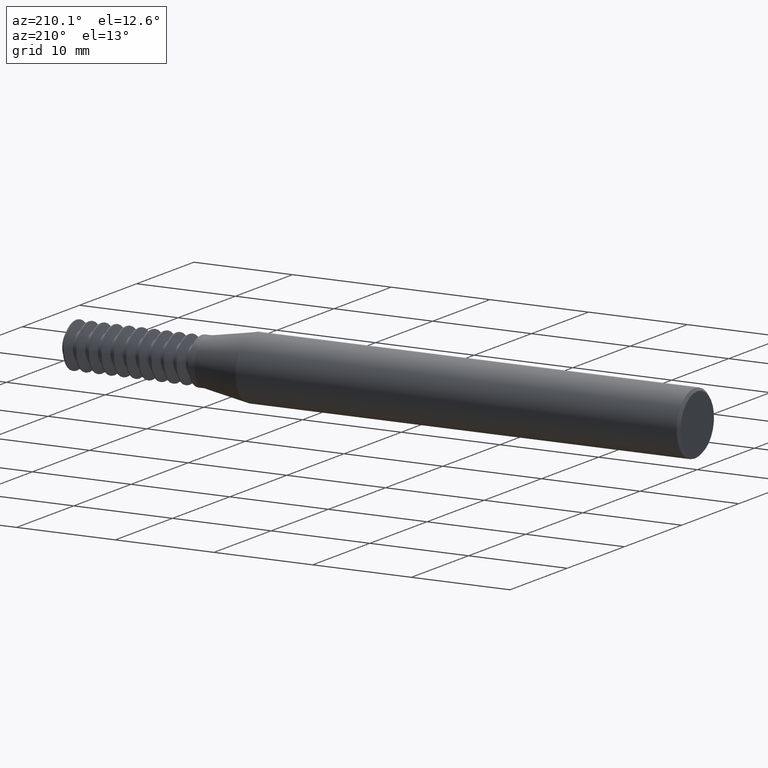
[diagram: clean part render]
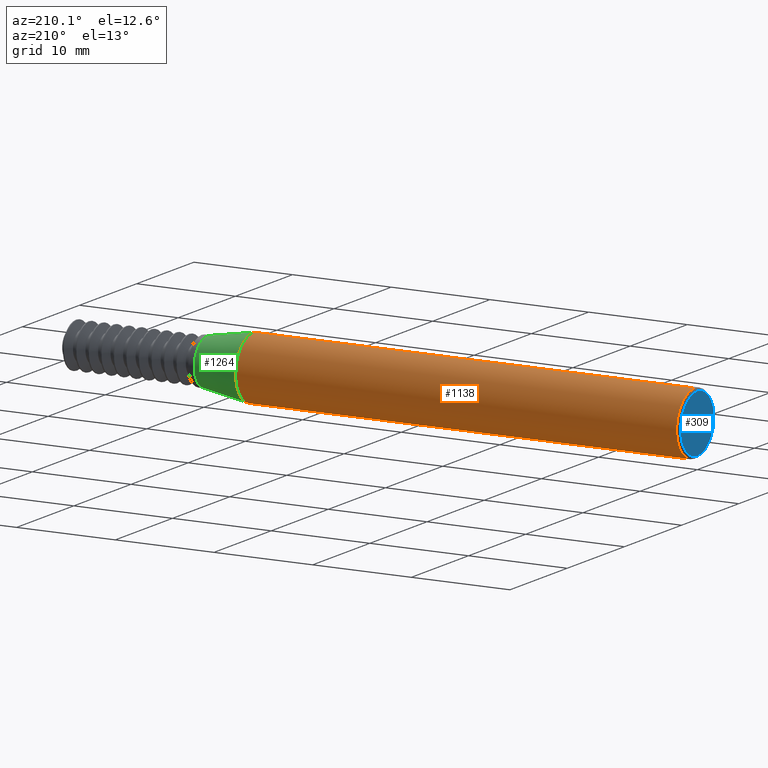
[diagram: same view with three faces highlighted in distinct colors, each labeled with its STEP entity id]
A machine part, auxiliary view with three faces highlighted in distinct colors.
Their STEP definitions:

[orange] entity #1138 — the highlighted cylindrical surface (edge-blend (fillet) strip) has radius 3.1712 mm, axis along (1, -0, -0).
#46 = CARTESIAN_POINT ( 'NONE',  ( 1.770000000000000018, 1.528971528735470422E-17, 0.1248500000000000026 ) ) ;
#76 = EDGE_CURVE ( 'NONE', #1095, #842, #955, .T. ) ;
#83 = AXIS2_PLACEMENT_3D ( 'NONE', #1042, #2141, #1838 ) ;
#112 = LINE ( 'NONE', #1998, #621 ) ;
#129 = EDGE_CURVE ( 'NONE', #842, #616, #549, .T. ) ;
#221 = DIRECTION ( 'NONE',  ( 0.000000000000000000, 0.000000000000000000, -1.000000000000000000 ) ) ;
#289 = CARTESIAN_POINT ( 'NONE',  ( 1.770000000000000018, 0.000000000000000000, -0.1248500000000000026 ) ) ;
#353 = CARTESIAN_POINT ( 'NONE',  ( 2.500000000000000000, 0.000000000000000000, -0.1248500000000000026 ) ) ;
#417 = VERTEX_POINT ( 'NONE', #2427 ) ;
#445 = FACE_OUTER_BOUND ( 'NONE', #1686, .T. ) ;
#549 = CIRCLE ( 'NONE', #1918, 0.1248500000000000026 ) ;
#616 = VERTEX_POINT ( 'NONE', #46 ) ;
#621 = VECTOR ( 'NONE', #1586, 39.37007874015748143 ) ;
#758 = CARTESIAN_POINT ( 'NONE',  ( 2.500000000000000000, 0.000000000000000000, 0.000000000000000000 ) ) ;
#842 = VERTEX_POINT ( 'NONE', #289 ) ;
#844 = EDGE_CURVE ( 'NONE', #417, #616, #112, .T. ) ;
#862 = ORIENTED_EDGE ( 'NONE', *, *, #76, .F. ) ;
#879 = EDGE_CURVE ( 'NONE', #1095, #417, #2194, .T. ) ;
#951 = ORIENTED_EDGE ( 'NONE', *, *, #129, .F. ) ;
#955 = LINE ( 'NONE', #353, #1442 ) ;
#1042 = CARTESIAN_POINT ( 'NONE',  ( 0.01000000000000016674, 0.000000000000000000, 0.000000000000000000 ) ) ;
#1095 = VERTEX_POINT ( 'NONE', #1911 ) ;
#1137 = DIRECTION ( 'NONE',  ( 1.000000000000000000, -0.000000000000000000, -0.000000000000000000 ) ) ;
#1138 = ADVANCED_FACE ( 'NONE', ( #445 ), #1180, .T. ) ;
#1180 = CYLINDRICAL_SURFACE ( 'NONE', #2205, 0.1248500000000000026 ) ;
#1442 = VECTOR ( 'NONE', #1137, 39.37007874015748143 ) ;
#1505 = DIRECTION ( 'NONE',  ( 0.000000000000000000, 0.000000000000000000, -1.000000000000000000 ) ) ;
#1586 = DIRECTION ( 'NONE',  ( 1.000000000000000000, -0.000000000000000000, -0.000000000000000000 ) ) ;
#1686 = EDGE_LOOP ( 'NONE', ( #2260, #1732, #951, #862 ) ) ;
#1729 = DIRECTION ( 'NONE',  ( 1.000000000000000000, -0.000000000000000000, -0.000000000000000000 ) ) ;
#1732 = ORIENTED_EDGE ( 'NONE', *, *, #844, .T. ) ;
#1838 = DIRECTION ( 'NONE',  ( 0.000000000000000000, 0.000000000000000000, 1.000000000000000000 ) ) ;
#1868 = CARTESIAN_POINT ( 'NONE',  ( 1.770000000000000018, 0.000000000000000000, 0.000000000000000000 ) ) ;
#1897 = DIRECTION ( 'NONE',  ( 1.000000000000000000, -0.000000000000000000, -0.000000000000000000 ) ) ;
#1911 = CARTESIAN_POINT ( 'NONE',  ( 0.01000000000000016674, 0.000000000000000000, -0.1248500000000000026 ) ) ;
#1918 = AXIS2_PLACEMENT_3D ( 'NONE', #1868, #1897, #221 ) ;
#1998 = CARTESIAN_POINT ( 'NONE',  ( 2.500000000000000000, 1.528971528735470422E-17, 0.1248500000000000026 ) ) ;
#2141 = DIRECTION ( 'NONE',  ( 1.000000000000000000, -0.000000000000000000, -0.000000000000000000 ) ) ;
#2194 = CIRCLE ( 'NONE', #83, 0.1248500000000000026 ) ;
#2205 = AXIS2_PLACEMENT_3D ( 'NONE', #758, #1729, #1505 ) ;
#2260 = ORIENTED_EDGE ( 'NONE', *, *, #879, .T. ) ;
#2427 = CARTESIAN_POINT ( 'NONE',  ( 0.01000000000000016674, 1.528971528735470422E-17, 0.1248500000000000026 ) ) ;

[blue] entity #309 — the highlighted planar face has unit normal (-1, 0, 0).
#18 = AXIS2_PLACEMENT_3D ( 'NONE', #437, #1111, #1955 ) ;
#106 = EDGE_LOOP ( 'NONE', ( #1800, #1930 ) ) ;
#259 = CARTESIAN_POINT ( 'NONE',  ( 0.000000000000000000, 1.467739188778101048E-17, 0.1148499999999997301 ) ) ;
#309 = ADVANCED_FACE ( 'NONE', ( #846 ), #1977, .T. ) ;
#372 = CARTESIAN_POINT ( 'NONE',  ( 0.000000000000000000, 0.000000000000000000, 0.000000000000000000 ) ) ;
#437 = CARTESIAN_POINT ( 'NONE',  ( 0.000000000000000000, 0.000000000000000000, 0.000000000000000000 ) ) ;
#566 = DIRECTION ( 'NONE',  ( 0.000000000000000000, 0.000000000000000000, 1.000000000000000000 ) ) ;
#715 = CIRCLE ( 'NONE', #18, 0.1148499999999997301 ) ;
#746 = DIRECTION ( 'NONE',  ( -1.000000000000000000, 0.000000000000000000, 0.000000000000000000 ) ) ;
#846 = FACE_OUTER_BOUND ( 'NONE', #106, .T. ) ;
#1085 = CIRCLE ( 'NONE', #1766, 0.1148499999999997301 ) ;
#1111 = DIRECTION ( 'NONE',  ( -1.000000000000000000, 0.000000000000000000, 0.000000000000000000 ) ) ;
#1229 = CARTESIAN_POINT ( 'NONE',  ( 0.000000000000000000, 0.000000000000000000, 0.000000000000000000 ) ) ;
#1423 = CARTESIAN_POINT ( 'NONE',  ( 0.000000000000000000, 0.000000000000000000, -0.1148499999999997301 ) ) ;
#1486 = EDGE_CURVE ( 'NONE', #2418, #1737, #715, .T. ) ;
#1737 = VERTEX_POINT ( 'NONE', #1423 ) ;
#1766 = AXIS2_PLACEMENT_3D ( 'NONE', #372, #746, #566 ) ;
#1800 = ORIENTED_EDGE ( 'NONE', *, *, #2281, .T. ) ;
#1930 = ORIENTED_EDGE ( 'NONE', *, *, #1486, .T. ) ;
#1955 = DIRECTION ( 'NONE',  ( 0.000000000000000000, 0.000000000000000000, 1.000000000000000000 ) ) ;
#1977 = PLANE ( 'NONE',  #2035 ) ;
#2035 = AXIS2_PLACEMENT_3D ( 'NONE', #1229, #2172, #2189 ) ;
#2172 = DIRECTION ( 'NONE',  ( -1.000000000000000000, 0.000000000000000000, 0.000000000000000000 ) ) ;
#2189 = DIRECTION ( 'NONE',  ( 0.000000000000000000, 0.000000000000000000, 1.000000000000000000 ) ) ;
#2281 = EDGE_CURVE ( 'NONE', #1737, #2418, #1085, .T. ) ;
#2418 = VERTEX_POINT ( 'NONE', #259 ) ;

[green] entity #1264 — the highlighted conical surface has half-angle 10 deg.
#46 = CARTESIAN_POINT ( 'NONE',  ( 1.770000000000000018, 1.528971528735470422E-17, 0.1248500000000000026 ) ) ;
#53 = VERTEX_POINT ( 'NONE', #2231 ) ;
#81 = DIRECTION ( 'NONE',  ( -0.9848077530122077983, 2.126576849575776537E-17, -0.1736481776669307753 ) ) ;
#129 = EDGE_CURVE ( 'NONE', #842, #616, #549, .T. ) ;
#221 = DIRECTION ( 'NONE',  ( 0.000000000000000000, 0.000000000000000000, -1.000000000000000000 ) ) ;
#263 = CARTESIAN_POINT ( 'NONE',  ( 1.953465966864632364, 1.132798289211301828E-17, -0.09249999999999999889 ) ) ;
#289 = CARTESIAN_POINT ( 'NONE',  ( 1.770000000000000018, 0.000000000000000000, -0.1248500000000000026 ) ) ;
#318 = EDGE_CURVE ( 'NONE', #912, #616, #1810, .T. ) ;
#335 = CARTESIAN_POINT ( 'NONE',  ( 1.953465966864632364, 0.000000000000000000, 0.09249999999999999889 ) ) ;
#347 = ORIENTED_EDGE ( 'NONE', *, *, #318, .F. ) ;
#385 = EDGE_LOOP ( 'NONE', ( #1667, #916, #1632, #347 ) ) ;
#395 = VECTOR ( 'NONE', #81, 39.37007874015748854 ) ;
#484 = CONICAL_SURFACE ( 'NONE', #1175, 0.09249999999999999889, 0.1745329251994334196 ) ;
#502 = DIRECTION ( 'NONE',  ( 0.000000000000000000, 0.000000000000000000, 1.000000000000000000 ) ) ;
#514 = CARTESIAN_POINT ( 'NONE',  ( 1.953465966864632364, 0.000000000000000000, 0.000000000000000000 ) ) ;
#549 = CIRCLE ( 'NONE', #1918, 0.1248500000000000026 ) ;
#616 = VERTEX_POINT ( 'NONE', #46 ) ;
#700 = EDGE_CURVE ( 'NONE', #53, #842, #1938, .T. ) ;
#745 = DIRECTION ( 'NONE',  ( 1.000000000000000000, -0.000000000000000000, -0.000000000000000000 ) ) ;
#842 = VERTEX_POINT ( 'NONE', #289 ) ;
#912 = VERTEX_POINT ( 'NONE', #335 ) ;
#916 = ORIENTED_EDGE ( 'NONE', *, *, #700, .T. ) ;
#1016 = AXIS2_PLACEMENT_3D ( 'NONE', #514, #745, #1273 ) ;
#1034 = CARTESIAN_POINT ( 'NONE',  ( 1.953465966864632364, 0.000000000000000000, 0.09249999999999999889 ) ) ;
#1175 = AXIS2_PLACEMENT_3D ( 'NONE', #1188, #1782, #502 ) ;
#1188 = CARTESIAN_POINT ( 'NONE',  ( 1.953465966864632364, 0.000000000000000000, 0.000000000000000000 ) ) ;
#1234 = FACE_OUTER_BOUND ( 'NONE', #385, .T. ) ;
#1242 = DIRECTION ( 'NONE',  ( -0.9848077530122077983, 0.000000000000000000, 0.1736481776669307753 ) ) ;
#1264 = ADVANCED_FACE ( 'NONE', ( #1234 ), #484, .T. ) ;
#1273 = DIRECTION ( 'NONE',  ( 0.000000000000000000, 0.000000000000000000, -1.000000000000000000 ) ) ;
#1392 = EDGE_CURVE ( 'NONE', #53, #912, #2251, .T. ) ;
#1632 = ORIENTED_EDGE ( 'NONE', *, *, #129, .T. ) ;
#1667 = ORIENTED_EDGE ( 'NONE', *, *, #1392, .F. ) ;
#1782 = DIRECTION ( 'NONE',  ( -1.000000000000000000, 0.000000000000000000, 0.000000000000000000 ) ) ;
#1810 = LINE ( 'NONE', #1034, #1954 ) ;
#1868 = CARTESIAN_POINT ( 'NONE',  ( 1.770000000000000018, 0.000000000000000000, 0.000000000000000000 ) ) ;
#1897 = DIRECTION ( 'NONE',  ( 1.000000000000000000, -0.000000000000000000, -0.000000000000000000 ) ) ;
#1918 = AXIS2_PLACEMENT_3D ( 'NONE', #1868, #1897, #221 ) ;
#1938 = LINE ( 'NONE', #263, #395 ) ;
#1954 = VECTOR ( 'NONE', #1242, 39.37007874015748854 ) ;
#2231 = CARTESIAN_POINT ( 'NONE',  ( 1.953465966864632364, 1.330884908973386202E-17, -0.09249999999999999889 ) ) ;
#2251 = CIRCLE ( 'NONE', #1016, 0.09249999999999999889 ) ;